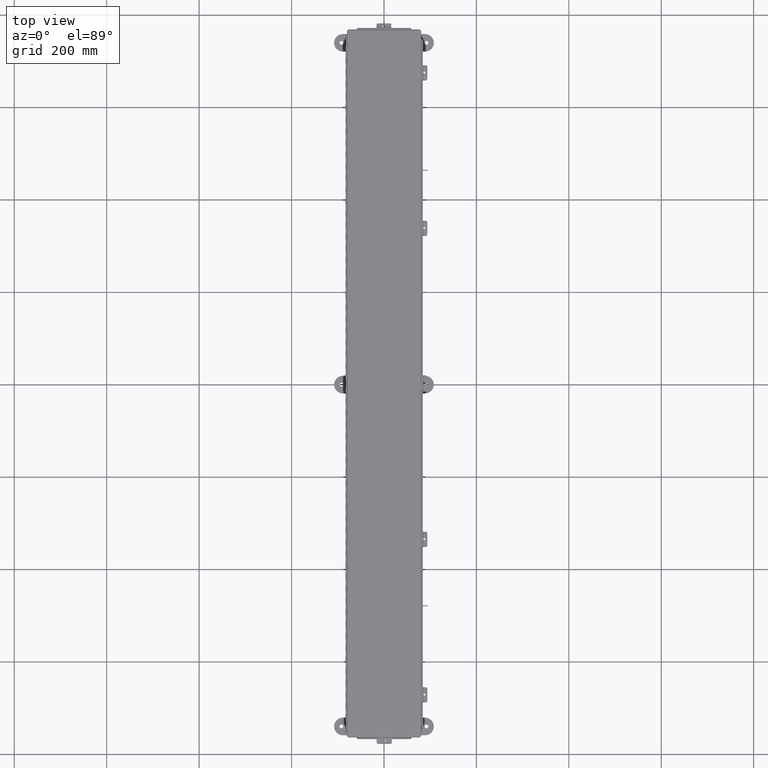
[diagram: clean part render]
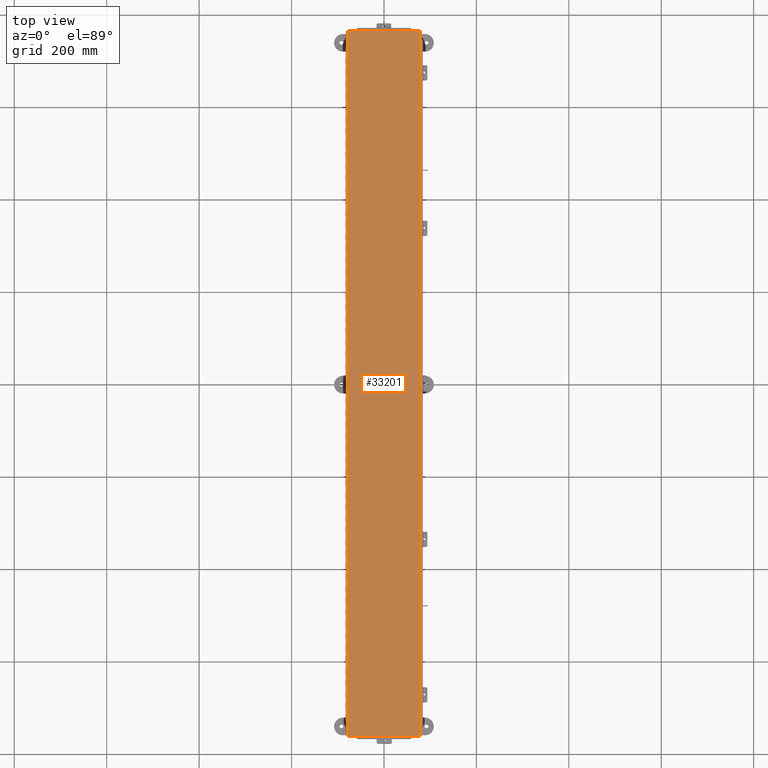
[diagram: same view with one face highlighted and labeled with its STEP entity id]
A machine part, top view. The second image highlights one B-rep face of the part: STEP entity #33201.
In plain terms, the highlighted planar face has unit normal (-0, -0, 1).
Its self-contained STEP definition (entity closure, byte-faithful):
#970 = EDGE_CURVE ( 'NONE', #39987, #8239, #23030, .T. ) ;
#2542 = DIRECTION ( 'NONE',  ( -3.155443620884031800E-030, -1.513626861892808800E-029, -1.000000000000000000 ) ) ;
#3091 = DIRECTION ( 'NONE',  ( 1.000000000000000000, 2.795951198457000300E-028, -3.155443620884031800E-030 ) ) ;
#3849 = DIRECTION ( 'NONE',  ( 2.797430312654304900E-028, 1.000000000000000000, 1.523487623208079000E-029 ) ) ;
#6021 = VERTEX_POINT ( 'NONE', #30358 ) ;
#7000 = ORIENTED_EDGE ( 'NONE', *, *, #22225, .T. ) ;
#8239 = VERTEX_POINT ( 'NONE', #8513 ) ;
#8513 = CARTESIAN_POINT ( 'NONE',  ( 3.068550000000003700, 30.06854999999999100, -0.07469999999999907300 ) ) ;
#8613 = ORIENTED_EDGE ( 'NONE', *, *, #970, .T. ) ;
#8959 = ORIENTED_EDGE ( 'NONE', *, *, #25368, .T. ) ;
#9757 = VERTEX_POINT ( 'NONE', #30689 ) ;
#9827 = DIRECTION ( 'NONE',  ( -1.000000000000000000, -2.795951198457000300E-028, 3.155443620884031800E-030 ) ) ;
#15831 = CARTESIAN_POINT ( 'NONE',  ( -1.173840934777613000E-017, 0.0000000000000000000, -0.07470000000000015500 ) ) ;
#20518 = LINE ( 'NONE', #40576, #37297 ) ;
#22225 = EDGE_CURVE ( 'NONE', #9757, #39987, #20518, .T. ) ;
#23030 = LINE ( 'NONE', #35106, #31975 ) ;
#24966 = CARTESIAN_POINT ( 'NONE',  ( -3.068550000000020500, 30.06854999999999800, -0.07470000000000015500 ) ) ;
#25368 = EDGE_CURVE ( 'NONE', #8239, #6021, #43247, .T. ) ;
#25953 = DIRECTION ( 'NONE',  ( -1.000000000000000000, -2.795951198457000300E-028, 3.155443620884031800E-030 ) ) ;
#30302 = EDGE_LOOP ( 'NONE', ( #8613, #8959, #33312, #7000 ) ) ;
#30358 = CARTESIAN_POINT ( 'NONE',  ( 3.068550000000004100, -30.06855000000000500, -0.07470000000000015500 ) ) ;
#30689 = CARTESIAN_POINT ( 'NONE',  ( -3.068550000000020100, -30.06854999999999500, -0.07470000000000125200 ) ) ;
#30855 = AXIS2_PLACEMENT_3D ( 'NONE', #15831, #2542, #25953 ) ;
#31975 = VECTOR ( 'NONE', #3091, 39.37007874015748100 ) ;
#32899 = VECTOR ( 'NONE', #9827, 39.37007874015748100 ) ;
#33201 = ADVANCED_FACE ( 'NONE', ( #36118 ), #39241, .T. ) ;
#33276 = CARTESIAN_POINT ( 'NONE',  ( 3.074478932188137800, -30.06855000000000500, -0.07470000000000015500 ) ) ;
#33312 = ORIENTED_EDGE ( 'NONE', *, *, #42465, .T. ) ;
#35106 = CARTESIAN_POINT ( 'NONE',  ( -3.074478932188154300, 30.06854999999999800, -0.07470000000000015500 ) ) ;
#36118 = FACE_OUTER_BOUND ( 'NONE', #30302, .T. ) ;
#37104 = CARTESIAN_POINT ( 'NONE',  ( 3.068550000000003700, 30.07447893218812900, -0.07469999999999907300 ) ) ;
#37297 = VECTOR ( 'NONE', #3849, 39.37007874015748100 ) ;
#39241 = PLANE ( 'NONE',  #30855 ) ;
#39987 = VERTEX_POINT ( 'NONE', #24966 ) ;
#40457 = DIRECTION ( 'NONE',  ( -2.797430312654304900E-028, -1.000000000000000000, -1.523487623208079000E-029 ) ) ;
#40576 = CARTESIAN_POINT ( 'NONE',  ( -3.068550000000020100, -30.07447893218813900, -0.07470000000000125200 ) ) ;
#42206 = VECTOR ( 'NONE', #40457, 39.37007874015748100 ) ;
#42465 = EDGE_CURVE ( 'NONE', #6021, #9757, #42782, .T. ) ;
#42782 = LINE ( 'NONE', #33276, #32899 ) ;
#43247 = LINE ( 'NONE', #37104, #42206 ) ;